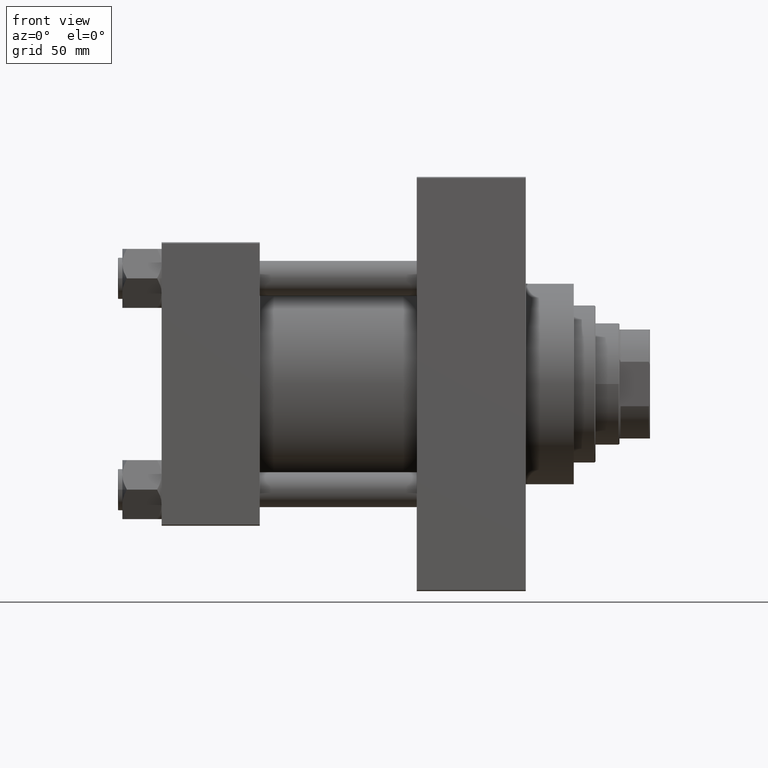
[diagram: clean part render]
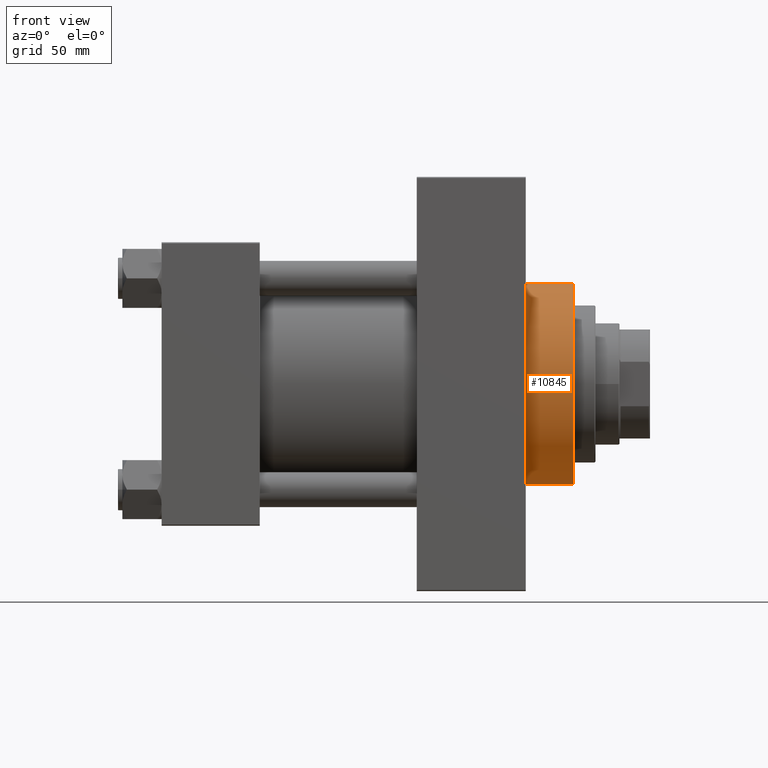
[diagram: same view with one face highlighted and labeled with its STEP entity id]
A machine part, front view. The second image highlights one B-rep face of the part: STEP entity #10845.
In plain terms, the highlighted cylindrical surface (partial cylindrical patch) has radius 46 mm, axis along (-1, -0, -0).
Its self-contained STEP definition (entity closure, byte-faithful):
#3037 = DIRECTION ( 'NONE',  ( -1.000000000000000000, -0.000000000000000000, -0.000000000000000000 ) ) ;
#5201 = VERTEX_POINT ( 'NONE', #29500 ) ;
#6158 = CARTESIAN_POINT ( 'NONE',  ( 188.9999999999999716, 0.000000000000000000, 46.00000000000000000 ) ) ;
#7195 = DIRECTION ( 'NONE',  ( 1.000000000000000000, 0.000000000000000000, 0.000000000000000000 ) ) ;
#8881 = EDGE_LOOP ( 'NONE', ( #40284, #21442, #27449, #15469 ) ) ;
#10339 = EDGE_CURVE ( 'NONE', #41681, #5201, #42051, .T. ) ;
#10845 = ADVANCED_FACE ( 'NONE', ( #20652 ), #17259, .T. ) ;
#15469 = ORIENTED_EDGE ( 'NONE', *, *, #10339, .T. ) ;
#15470 = VECTOR ( 'NONE', #3037, 1000.000000000000000 ) ;
#16796 = DIRECTION ( 'NONE',  ( 0.000000000000000000, 0.000000000000000000, 1.000000000000000000 ) ) ;
#17259 = CYLINDRICAL_SURFACE ( 'NONE', #21998, 46.00000000000000000 ) ;
#19277 = DIRECTION ( 'NONE',  ( 1.000000000000000000, 0.000000000000000000, 0.000000000000000000 ) ) ;
#19482 = CARTESIAN_POINT ( 'NONE',  ( 188.9999999999999716, 5.633375276077824704E-15, -46.00000000000000000 ) ) ;
#19744 = DIRECTION ( 'NONE',  ( 0.000000000000000000, 0.000000000000000000, -1.000000000000000000 ) ) ;
#20652 = FACE_OUTER_BOUND ( 'NONE', #8881, .T. ) ;
#21372 = CARTESIAN_POINT ( 'NONE',  ( 188.9999999999999716, 5.633375276077824704E-15, -46.00000000000000000 ) ) ;
#21442 = ORIENTED_EDGE ( 'NONE', *, *, #33784, .F. ) ;
#21998 = AXIS2_PLACEMENT_3D ( 'NONE', #31982, #42134, #16796 ) ;
#22992 = VERTEX_POINT ( 'NONE', #27367 ) ;
#23553 = AXIS2_PLACEMENT_3D ( 'NONE', #23859, #19277, #19744 ) ;
#23859 = CARTESIAN_POINT ( 'NONE',  ( 166.9999999999999716, 0.000000000000000000, 0.000000000000000000 ) ) ;
#27356 = EDGE_CURVE ( 'NONE', #34659, #5201, #46981, .T. ) ;
#27367 = CARTESIAN_POINT ( 'NONE',  ( 188.9999999999999716, 0.000000000000000000, 46.00000000000000000 ) ) ;
#27449 = ORIENTED_EDGE ( 'NONE', *, *, #30665, .T. ) ;
#28679 = VECTOR ( 'NONE', #35595, 1000.000000000000000 ) ;
#29500 = CARTESIAN_POINT ( 'NONE',  ( 166.9999999999999716, 5.633375276077824704E-15, -46.00000000000000000 ) ) ;
#30665 = EDGE_CURVE ( 'NONE', #22992, #41681, #35371, .T. ) ;
#31632 = CARTESIAN_POINT ( 'NONE',  ( 166.9999999999999716, 0.000000000000000000, 46.00000000000000000 ) ) ;
#31982 = CARTESIAN_POINT ( 'NONE',  ( 188.9999999999999716, 0.000000000000000000, 0.000000000000000000 ) ) ;
#32498 = CIRCLE ( 'NONE', #38679, 46.00000000000000000 ) ;
#33784 = EDGE_CURVE ( 'NONE', #22992, #34659, #32498, .T. ) ;
#34659 = VERTEX_POINT ( 'NONE', #19482 ) ;
#35371 = LINE ( 'NONE', #6158, #28679 ) ;
#35595 = DIRECTION ( 'NONE',  ( -1.000000000000000000, -0.000000000000000000, -0.000000000000000000 ) ) ;
#37345 = DIRECTION ( 'NONE',  ( 0.000000000000000000, 0.000000000000000000, -1.000000000000000000 ) ) ;
#38679 = AXIS2_PLACEMENT_3D ( 'NONE', #44361, #7195, #37345 ) ;
#40284 = ORIENTED_EDGE ( 'NONE', *, *, #27356, .F. ) ;
#41681 = VERTEX_POINT ( 'NONE', #31632 ) ;
#42051 = CIRCLE ( 'NONE', #23553, 46.00000000000000000 ) ;
#42134 = DIRECTION ( 'NONE',  ( -1.000000000000000000, -0.000000000000000000, -0.000000000000000000 ) ) ;
#44361 = CARTESIAN_POINT ( 'NONE',  ( 188.9999999999999716, 0.000000000000000000, 0.000000000000000000 ) ) ;
#46981 = LINE ( 'NONE', #21372, #15470 ) ;